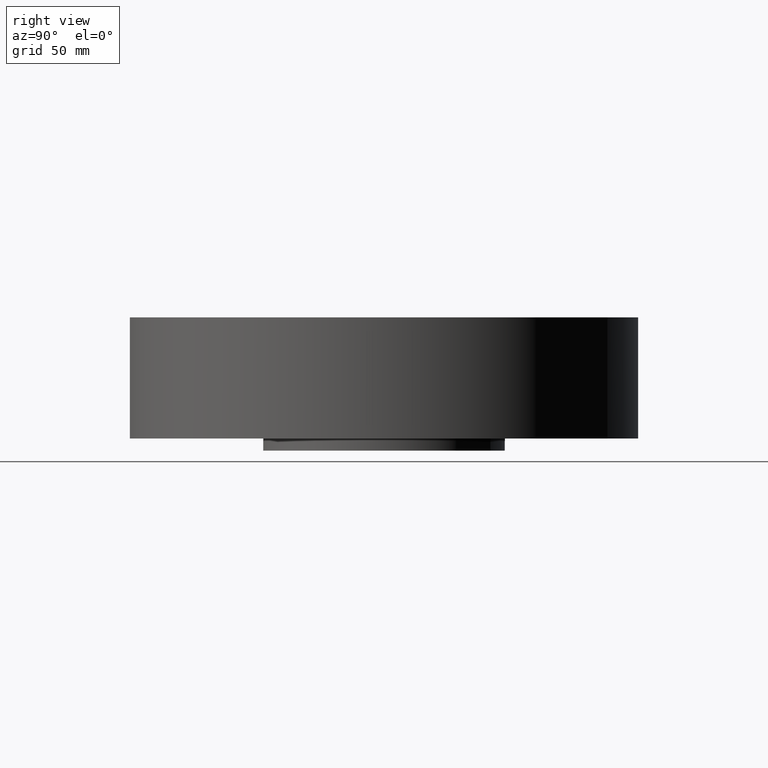
[diagram: clean part render]
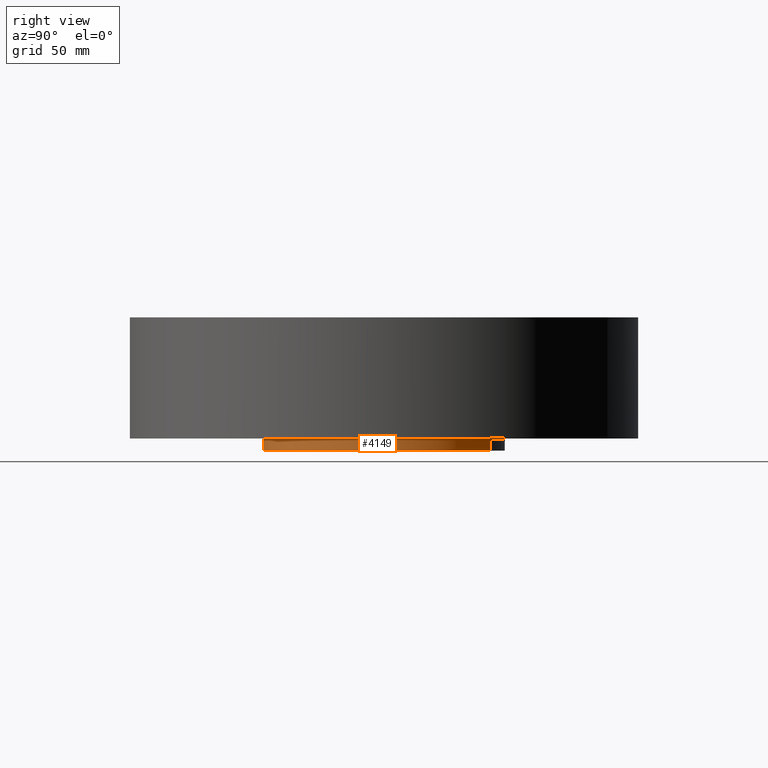
[diagram: same view with one face highlighted and labeled with its STEP entity id]
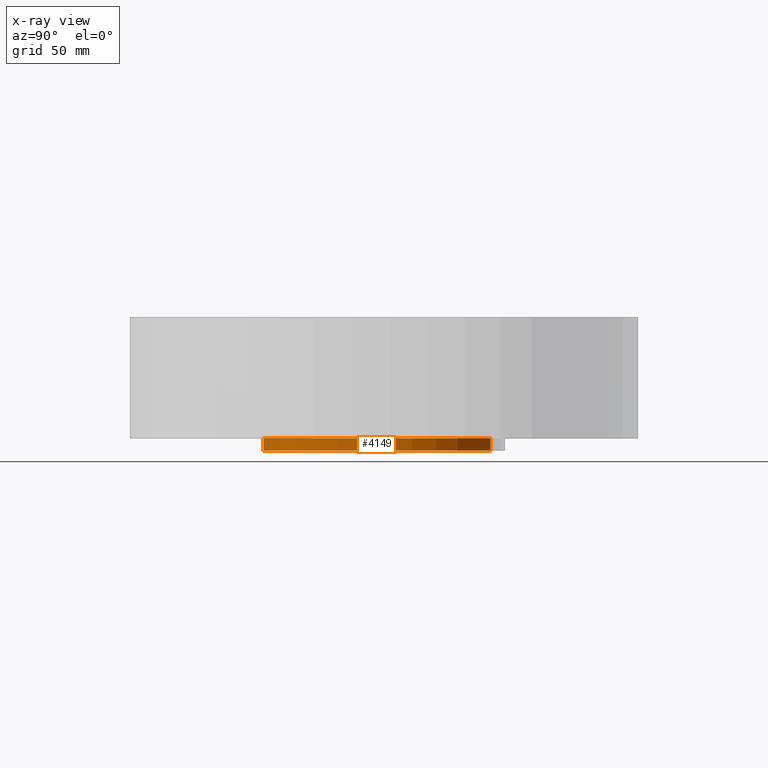
[diagram: x-ray of the same camera — body ghosted, the highlighted face saturated]
A machine part, right view. The second image highlights one B-rep face of the part: STEP entity #4149.
The next image is the same camera in x-ray: the body ghosted, the highlighted face saturated — about 0% of this face is hidden behind the body in this view.
In plain terms, the highlighted cylindrical surface (partial cylindrical patch) has radius 63.5 mm, axis along (0, 0, -1).
Its self-contained STEP definition (entity closure, byte-faithful):
#3723=AXIS2_PLACEMENT_3D('Circle Axis2P3D',#3721,#3722,$) ;
#4122=AXIS2_PLACEMENT_3D('Cylinder Axis2P3D',#4119,#4120,#4121) ;
#4126=AXIS2_PLACEMENT_3D('Circle Axis2P3D',#4124,#4125,$) ;
#3721=CARTESIAN_POINT('Axis2P3D Location',(0.,0.,0.)) ;
#3725=CARTESIAN_POINT('Vertex',(1.19856384652,2.19395640473,-2.81139940724E-014)) ;
#3727=CARTESIAN_POINT('Vertex',(-1.19856384652,-2.19395640473,-2.81139940724E-014)) ;
#4119=CARTESIAN_POINT('Axis2P3D Location',(0.,0.,1.125)) ;
#4124=CARTESIAN_POINT('Axis2P3D Location',(0.,0.,-0.250000000001)) ;
#4128=CARTESIAN_POINT('Vertex',(1.19856384652,2.19395640473,-0.250000000001)) ;
#4130=CARTESIAN_POINT('Vertex',(-1.19856384652,-2.19395640473,-0.250000000001)) ;
#4133=CARTESIAN_POINT('Line Origine',(1.19856384652,2.19395640473,-0.125000000001)) ;
#4138=CARTESIAN_POINT('Line Origine',(-1.19856384652,-2.19395640473,-0.125000000001)) ;
#3722=DIRECTION('Axis2P3D Direction',(0.,0.,-0.0393700787402)) ;
#4120=DIRECTION('Axis2P3D Direction',(0.,0.,-0.0393700787402)) ;
#4121=DIRECTION('Axis2P3D XDirection',(-0.0188750212049,-0.0345504945626,0.)) ;
#4125=DIRECTION('Axis2P3D Direction',(0.,0.,-0.0393700787402)) ;
#4134=DIRECTION('Vector Direction',(0.,0.,-0.0393700787402)) ;
#4139=DIRECTION('Vector Direction',(0.,0.,-0.0393700787402)) ;
#4135=VECTOR('Line Direction',#4134,0.0393700787402) ;
#4140=VECTOR('Line Direction',#4139,0.0393700787402) ;
#4144=ORIENTED_EDGE('',*,*,#4132,.F.) ;
#4145=ORIENTED_EDGE('',*,*,#4137,.T.) ;
#4146=ORIENTED_EDGE('',*,*,#3729,.T.) ;
#4147=ORIENTED_EDGE('',*,*,#4142,.F.) ;
#4149=ADVANCED_FACE('PartBody',(#4148),#4123,.T.) ;
#3724=CIRCLE('generated circle',#3723,2.50000000001) ;
#4127=CIRCLE('generated circle',#4126,2.50000000001) ;
#4123=CYLINDRICAL_SURFACE('generated cylinder',#4122,2.50000000001) ;
#3729=EDGE_CURVE('',#3726,#3728,#3724,.T.) ;
#4132=EDGE_CURVE('',#4129,#4131,#4127,.T.) ;
#4137=EDGE_CURVE('',#4129,#3726,#4136,.F.) ;
#4142=EDGE_CURVE('',#4131,#3728,#4141,.F.) ;
#4143=EDGE_LOOP('',(#4144,#4145,#4146,#4147)) ;
#4148=FACE_OUTER_BOUND('',#4143,.T.) ;
#4136=LINE('Line',#4133,#4135) ;
#4141=LINE('Line',#4138,#4140) ;
#3726=VERTEX_POINT('',#3725) ;
#3728=VERTEX_POINT('',#3727) ;
#4129=VERTEX_POINT('',#4128) ;
#4131=VERTEX_POINT('',#4130) ;